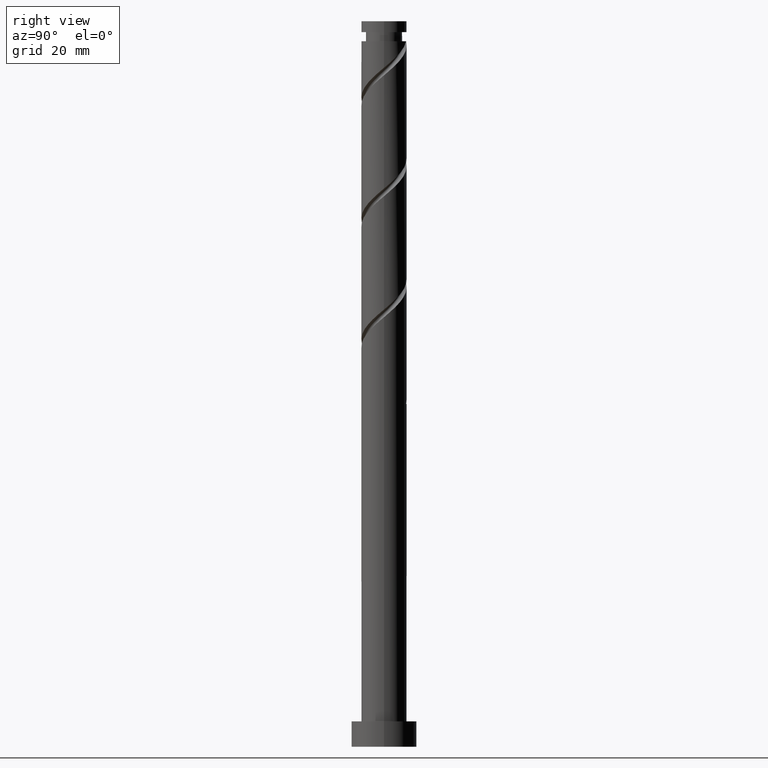
[diagram: clean part render]
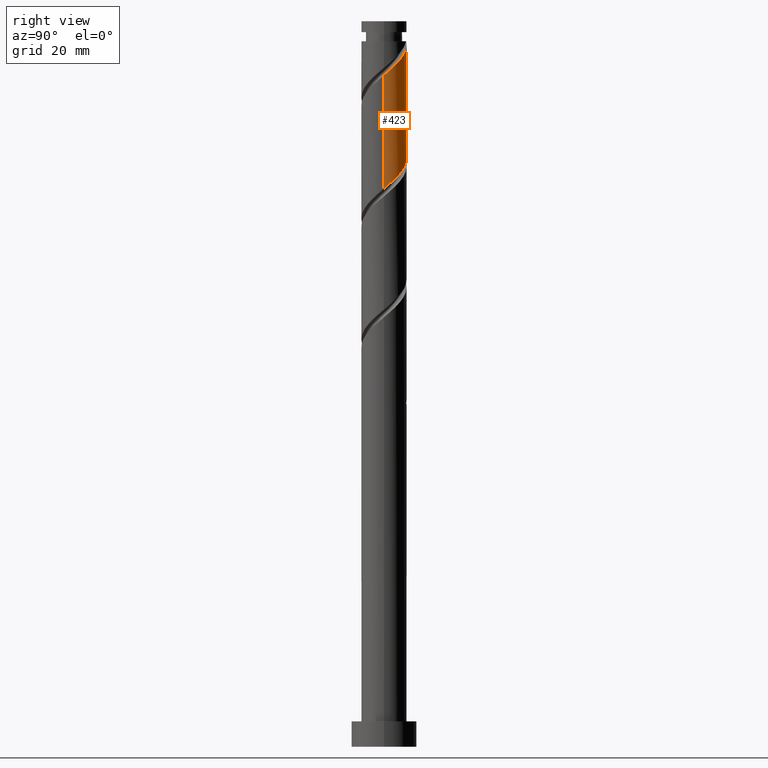
[diagram: same view with one face highlighted and labeled with its STEP entity id]
A machine part, right view. The second image highlights one B-rep face of the part: STEP entity #423.
In plain terms, the highlighted cylindrical surface (edge-blend (fillet) strip) has radius 6.25 mm, axis along (-0, -0, -1).
Its self-contained STEP definition (entity closure, byte-faithful):
#3 = CARTESIAN_POINT ( 'NONE',  ( -0.4373627486604885206, 6.288740726453971419, 193.7839808315455912 ) ) ;
#42 = LINE ( 'NONE', #585, #1359 ) ;
#102 = CARTESIAN_POINT ( 'NONE',  ( -5.961259273546039239, 2.050105844106077768, 168.7839808315455628 ) ) ;
#112 = CARTESIAN_POINT ( 'NONE',  ( -6.125000000000000000, 1.243734296383277815, 169.4784252759899914 ) ) ;
#117 = ORIENTED_EDGE ( 'NONE', *, *, #984, .F. ) ;
#127 = ORIENTED_EDGE ( 'NONE', *, *, #425, .F. ) ;
#134 = ORIENTED_EDGE ( 'NONE', *, *, #341, .T. ) ;
#161 = CARTESIAN_POINT ( 'NONE',  ( -1.243734296383196547, 6.124999999999814371, 194.4784252759899346 ) ) ;
#171 = CARTESIAN_POINT ( 'NONE',  ( 4.137549047383411782, 4.756073378215824654, 189.6173141648788771 ) ) ;
#185 = CARTESIAN_POINT ( 'NONE',  ( 0.000000000000000000, 0.000000000000000000, 194.4784252759900198 ) ) ;
#221 = ORIENTED_EDGE ( 'NONE', *, *, #558, .F. ) ;
#253 = CARTESIAN_POINT ( 'NONE',  ( 6.250000000000000888, 8.015228461780437926E-15, 153.8753252645334442 ) ) ;
#261 =( BOUNDED_CURVE ( )  B_SPLINE_CURVE ( 2, ( #1218, #1476, #409, #264, #275, #1229, #1247, #171, #1747, #693, #565, #1091, #944, #3, #161 ),
 .UNSPECIFIED., .F., .T. ) 
 B_SPLINE_CURVE_WITH_KNOTS ( ( 3, 2, 2, 2, 2, 2, 2, 3 ),
 ( 0.6795317669814461281, 0.6875000000000000000, 0.6979166666666668517, 0.7083333333333333703, 0.7187500000000001110, 0.7291666666666668517, 0.7395833333333334814, 0.7500000000000002220 ),
 .UNSPECIFIED. ) 
 CURVE ( )  GEOMETRIC_REPRESENTATION_ITEM ( )  RATIONAL_B_SPLINE_CURVE ( ( 0.9062941362546430568, 0.9031415850403472501, 0.9090909090909224943, 0.9013135103398410841, 0.9090909090909224943, 0.9013135103398410841, 0.9090909090909224943, 0.9013135103398410841, 0.9090909090909224943, 0.9013135103398410841, 0.9090909090909224943, 0.9013135103398410841, 0.9090909090909224943, 0.9013135103398408621, 0.9090909090909227164 ) ) 
 REPRESENTATION_ITEM ( '' )  );
#264 = CARTESIAN_POINT ( 'NONE',  ( 5.961259273546051674, 2.050105844106077768, 186.8395363871011341 ) ) ;
#275 = CARTESIAN_POINT ( 'NONE',  ( 5.594393563069378850, 2.786621729171010475, 187.5339808315455343 ) ) ;
#341 = EDGE_CURVE ( 'NONE', #1572, #1751, #1296, .T. ) ;
#360 = CARTESIAN_POINT ( 'NONE',  ( 0.4373627486604777515, 6.288740726453959873, 161.8395363871011625 ) ) ;
#361 = DIRECTION ( 'NONE',  ( -0.000000000000000000, -0.000000000000000000, -1.000000000000000000 ) ) ;
#367 = CARTESIAN_POINT ( 'NONE',  ( -6.250000000000000000, -2.930941750949562457E-15, 170.5419919312001298 ) ) ;
#372 = CARTESIAN_POINT ( 'NONE',  ( 2.786621729171014472, 5.594393563069363751, 159.7562030537678197 ) ) ;
#389 = CARTESIAN_POINT ( 'NONE',  ( -5.227527852592697144, 3.523137614235942294, 167.3950919426566770 ) ) ;
#400 = CARTESIAN_POINT ( 'NONE',  ( 6.250000000000000000, 0.1921371978604602682, 154.0384889525615506 ) ) ;
#403 = EDGE_CURVE ( 'NONE', #821, #1657, #1113, .T. ) ;
#409 = CARTESIAN_POINT ( 'NONE',  ( 6.125000000000009770, 1.243734296383277593, 186.1450919426567339 ) ) ;
#423 = ADVANCED_FACE ( 'NONE', ( #541 ), #435, .T. ) ;
#425 = EDGE_CURVE ( 'NONE', #821, #1556, #42, .T. ) ;
#435 = CYLINDRICAL_SURFACE ( 'NONE', #1004, 6.250000000000000000 ) ;
#512 = CARTESIAN_POINT ( 'NONE',  ( -3.451576079800709351, 5.210481989734498498, 165.3117586093233911 ) ) ;
#530 = CARTESIAN_POINT ( 'NONE',  ( 5.664890601253177671, 2.765603112218012249, 156.2839808315455628 ) ) ;
#541 = FACE_OUTER_BOUND ( 'NONE', #1078, .T. ) ;
#558 = EDGE_CURVE ( 'NONE', #1556, #1751, #702, .T. ) ;
#565 = CARTESIAN_POINT ( 'NONE',  ( 1.985394503774124075, 5.926272746371332723, 191.7006474982123336 ) ) ;
#572 = DIRECTION ( 'NONE',  ( -1.000000000000000000, 0.000000000000000000, 0.000000000000000000 ) ) ;
#585 = CARTESIAN_POINT ( 'NONE',  ( -6.250000000000000000, 0.000000000000000000, 200.0000000000000000 ) ) ;
#675 = CARTESIAN_POINT ( 'NONE',  ( 4.139605496225884806, 4.682538449988045137, 158.3673141648789056 ) ) ;
#682 = CARTESIAN_POINT ( 'NONE',  ( 2.050105844106082653, 5.961259273546034798, 160.4506474982122484 ) ) ;
#693 = CARTESIAN_POINT ( 'NONE',  ( 2.765603112218026016, 5.664890601253181224, 191.0062030537678481 ) ) ;
#702 =( BOUNDED_CURVE ( )  B_SPLINE_CURVE ( 2, ( #1583, #811, #112, #102, #1724, #389, #1084, #781, #512, #799, #1613, #1055, #1046, #360, #1458, #682, #372, #1732, #675, #925, #1450, #530, #1073, #1741, #935, #400, #789 ),
 .UNSPECIFIED., .F., .T. ) 
 B_SPLINE_CURVE_WITH_KNOTS ( ( 3, 2, 2, 2, 2, 2, 2, 2, 2, 2, 2, 2, 2, 3 ),
 ( 0.4295317669814461281, 0.4375000000000000000, 0.4479166666666666852, 0.4583333333333333148, 0.4687500000000000000, 0.4791666666666666852, 0.4895833333333333148, 0.5000000000000000000, 0.5104166666666666297, 0.5208333333333333703, 0.5312500000000000000, 0.5416666666666666297, 0.5520833333333333703, 0.5545317669814462391 ),
 .UNSPECIFIED. ) 
 CURVE ( )  GEOMETRIC_REPRESENTATION_ITEM ( )  RATIONAL_B_SPLINE_CURVE ( ( 0.9062941362546367285, 0.9031415850403408108, 0.9090909090909161661, 0.9013135103398346448, 0.9090909090909161661, 0.9013135103398346448, 0.9090909090909161661, 0.9013135103398346448, 0.9090909090909161661, 0.9013135103398346448, 0.9090909090909161661, 0.9013135103398346448, 0.9090909090909161661, 0.9013135103398346448, 0.9090909090909161661, 0.9013135103398346448, 0.9090909090909161661, 0.9013135103398346448, 0.9090909090909161661, 0.9013135103398346448, 0.9090909090909161661, 0.9013135103398346448, 0.9090909090909161661, 0.9013135103398346448, 0.9090909090909161661, 0.9072628343904100001, 0.9062941362546365065 ) ) 
 REPRESENTATION_ITEM ( '' )  );
#709 = DIRECTION ( 'NONE',  ( -0.000000000000000000, -0.000000000000000000, -1.000000000000000000 ) ) ;
#781 = CARTESIAN_POINT ( 'NONE',  ( -4.137549047383399348, 4.756073378215821990, 166.0062030537678197 ) ) ;
#789 = CARTESIAN_POINT ( 'NONE',  ( 6.250000000000000888, 8.015228461780437926E-15, 153.8753252645334157 ) ) ;
#799 = CARTESIAN_POINT ( 'NONE',  ( -2.765603112218016690, 5.664890601253175006, 164.6173141648789340 ) ) ;
#811 = CARTESIAN_POINT ( 'NONE',  ( -6.250000000000002665, 0.6281486345369992064, 170.0085655620108582 ) ) ;
#821 = VERTEX_POINT ( 'NONE', #902 ) ;
#902 = CARTESIAN_POINT ( 'NONE',  ( -6.249999999999988454, 0.000000000000000000, 194.4784252759900198 ) ) ;
#925 = CARTESIAN_POINT ( 'NONE',  ( 4.756073378215821990, 4.137549047383397571, 157.6728697204344769 ) ) ;
#935 = CARTESIAN_POINT ( 'NONE',  ( 6.238197808971718494, 0.3839115733348665294, 154.2006474982122199 ) ) ;
#936 = CARTESIAN_POINT ( 'NONE',  ( 0.000000000000000000, 0.000000000000000000, 200.0000000000000000 ) ) ;
#944 = CARTESIAN_POINT ( 'NONE',  ( 0.3839115733348765214, 6.238197808971730041, 193.0895363871011341 ) ) ;
#984 = EDGE_CURVE ( 'NONE', #1572, #1657, #261, .T. ) ;
#1004 = AXIS2_PLACEMENT_3D ( 'NONE', #936, #1376, #1085 ) ;
#1046 = CARTESIAN_POINT ( 'NONE',  ( -0.3839115733348693604, 6.238197808971717606, 162.5339808315455912 ) ) ;
#1055 = CARTESIAN_POINT ( 'NONE',  ( -1.205185895330217027, 6.187654891489475339, 163.2284252759900198 ) ) ;
#1073 = CARTESIAN_POINT ( 'NONE',  ( 5.926272746371325617, 1.985394503774112307, 155.5895363871011909 ) ) ;
#1078 = EDGE_LOOP ( 'NONE', ( #117, #134, #221, #127, #1453 ) ) ;
#1084 = CARTESIAN_POINT ( 'NONE',  ( -4.682538449988047802, 4.139605496225883030, 166.7006474982121915 ) ) ;
#1085 = DIRECTION ( 'NONE',  ( -1.000000000000000000, 0.000000000000000000, 0.000000000000000000 ) ) ;
#1091 = CARTESIAN_POINT ( 'NONE',  ( 1.205185895330223689, 6.187654891489485109, 192.3950919426567339 ) ) ;
#1113 = CIRCLE ( 'NONE', #1532, 6.249999999999988454 ) ;
#1143 = VECTOR ( 'NONE', #361, 1000.000000000000000 ) ;
#1157 = CARTESIAN_POINT ( 'NONE',  ( 6.250000000000010658, -1.136487617715128570E-15, 185.0815252874465955 ) ) ;
#1218 = CARTESIAN_POINT ( 'NONE',  ( 6.250000000000010658, -1.136487617715128570E-15, 185.0815252874465955 ) ) ;
#1229 = CARTESIAN_POINT ( 'NONE',  ( 5.227527852592706914, 3.523137614235943627, 188.2284252759900482 ) ) ;
#1236 = CARTESIAN_POINT ( 'NONE',  ( -1.243734296383196547, 6.124999999999814371, 194.4784252759899346 ) ) ;
#1247 = CARTESIAN_POINT ( 'NONE',  ( 4.682538449988059348, 4.139605496225884806, 188.9228697204345337 ) ) ;
#1260 = DIRECTION ( 'NONE',  ( -0.000000000000000000, -0.000000000000000000, -1.000000000000000000 ) ) ;
#1296 = LINE ( 'NONE', #1562, #1143 ) ;
#1359 = VECTOR ( 'NONE', #1260, 1000.000000000000000 ) ;
#1376 = DIRECTION ( 'NONE',  ( -0.000000000000000000, -0.000000000000000000, -1.000000000000000000 ) ) ;
#1450 = CARTESIAN_POINT ( 'NONE',  ( 5.210481989734498498, 3.451576079800706687, 156.9784252759900198 ) ) ;
#1453 = ORIENTED_EDGE ( 'NONE', *, *, #403, .T. ) ;
#1458 = CARTESIAN_POINT ( 'NONE',  ( 1.243734296383278926, 6.125000000000000000, 161.1450919426567054 ) ) ;
#1476 = CARTESIAN_POINT ( 'NONE',  ( 6.250000000000011546, 0.6281486345369968749, 185.6149516566358670 ) ) ;
#1532 = AXIS2_PLACEMENT_3D ( 'NONE', #185, #709, #572 ) ;
#1556 = VERTEX_POINT ( 'NONE', #367 ) ;
#1562 = CARTESIAN_POINT ( 'NONE',  ( 6.250000000000000000, 7.654042494670957606E-16, 200.0000000000000000 ) ) ;
#1572 = VERTEX_POINT ( 'NONE', #1157 ) ;
#1583 = CARTESIAN_POINT ( 'NONE',  ( -6.250000000000000000, -2.930941750949562457E-15, 170.5419919312001298 ) ) ;
#1613 = CARTESIAN_POINT ( 'NONE',  ( -1.985394503774116748, 5.926272746371323841, 163.9228697204344485 ) ) ;
#1657 = VERTEX_POINT ( 'NONE', #1236 ) ;
#1724 = CARTESIAN_POINT ( 'NONE',  ( -5.594393563069364639, 2.786621729171010919, 168.0895363871011625 ) ) ;
#1732 = CARTESIAN_POINT ( 'NONE',  ( 3.523137614235945403, 5.227527852592693591, 159.0617586093233342 ) ) ;
#1741 = CARTESIAN_POINT ( 'NONE',  ( 6.187654891489475339, 1.205185895330212587, 154.8950919426566770 ) ) ;
#1747 = CARTESIAN_POINT ( 'NONE',  ( 3.451576079800716901, 5.210481989734505603, 190.3117586093233626 ) ) ;
#1751 = VERTEX_POINT ( 'NONE', #253 ) ;